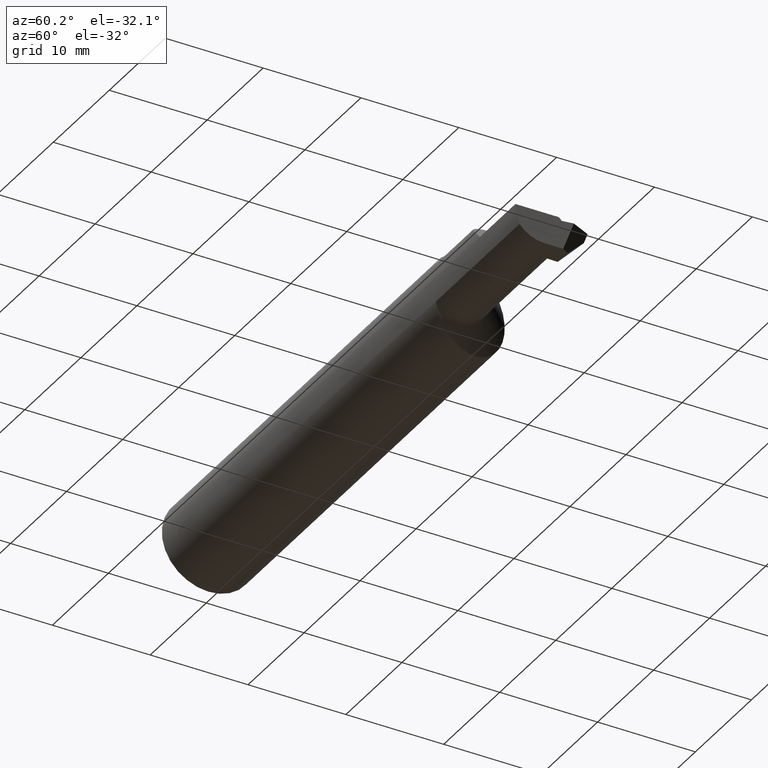
[diagram: clean part render]
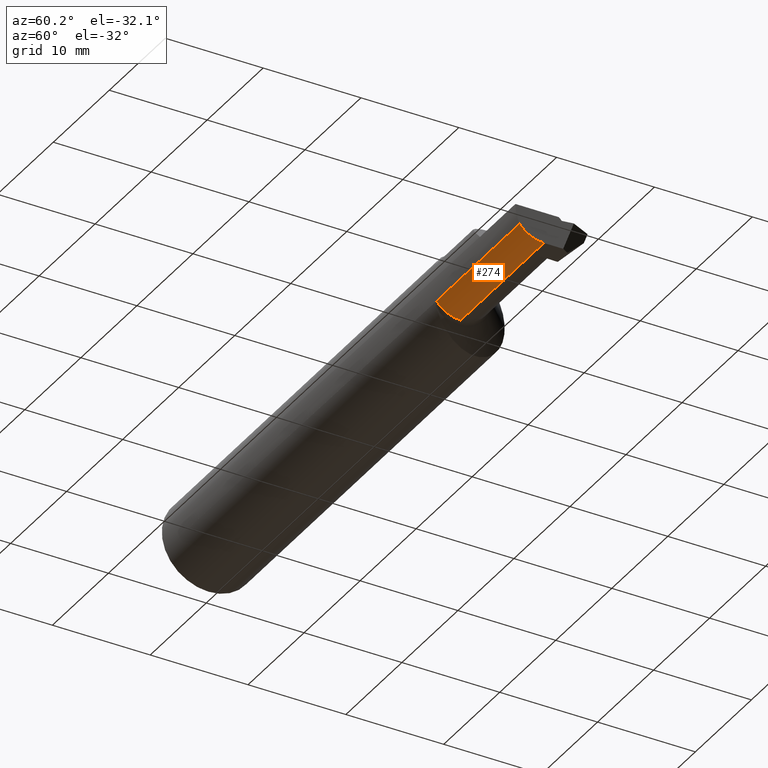
[diagram: same view with one face highlighted and labeled with its STEP entity id]
A machine part, auxiliary view. The second image highlights one B-rep face of the part: STEP entity #274.
In plain terms, the highlighted cylindrical surface (edge-blend (fillet) strip) has radius 3.175 mm, axis along (-1, -0, -0).
Its self-contained STEP definition (entity closure, byte-faithful):
#6 = DIRECTION ( 'NONE',  ( -1.000000000000000000, -0.000000000000000000, -0.000000000000000000 ) ) ;
#60 = VERTEX_POINT ( 'NONE', #254 ) ;
#62 = DIRECTION ( 'NONE',  ( 0.000000000000000000, 0.000000000000000000, 1.000000000000000000 ) ) ;
#68 = ORIENTED_EDGE ( 'NONE', *, *, #301, .T. ) ;
#71 = CIRCLE ( 'NONE', #890, 0.1250000000000000000 ) ;
#73 = EDGE_CURVE ( 'NONE', #966, #60, #916, .T. ) ;
#142 = CARTESIAN_POINT ( 'NONE',  ( 2.500000000000000000, -0.07234999999999983111, -0.1249999999999999861 ) ) ;
#150 = VERTEX_POINT ( 'NONE', #363 ) ;
#164 = VERTEX_POINT ( 'NONE', #451 ) ;
#169 = ORIENTED_EDGE ( 'NONE', *, *, #712, .F. ) ;
#171 = CIRCLE ( 'NONE', #538, 0.1250000000000000000 ) ;
#173 = CARTESIAN_POINT ( 'NONE',  ( 1.905000000000000027, -0.07234999999999980336, 0.000000000000000000 ) ) ;
#176 = ORIENTED_EDGE ( 'NONE', *, *, #748, .F. ) ;
#223 = VERTEX_POINT ( 'NONE', #608 ) ;
#242 = DIRECTION ( 'NONE',  ( -1.000000000000000000, -0.000000000000000000, -0.000000000000000000 ) ) ;
#251 = VECTOR ( 'NONE', #767, 39.37007874015748143 ) ;
#254 = CARTESIAN_POINT ( 'NONE',  ( 1.915355339059327644, -0.07234999999999978948, -0.1250000000000000000 ) ) ;
#262 = EDGE_CURVE ( 'NONE', #164, #60, #171, .T. ) ;
#274 = ADVANCED_FACE ( 'NONE', ( #631 ), #569, .T. ) ;
#301 = EDGE_CURVE ( 'NONE', #223, #164, #965, .T. ) ;
#363 = CARTESIAN_POINT ( 'NONE',  ( 2.500000000000000000, -0.07234999999999983111, -0.1249999999999999861 ) ) ;
#379 = AXIS2_PLACEMENT_3D ( 'NONE', #173, #6, #62 ) ;
#390 = DIRECTION ( 'NONE',  ( 1.000000000000000000, -0.000000000000000000, -0.000000000000000000 ) ) ;
#451 = CARTESIAN_POINT ( 'NONE',  ( 1.915355339059327644, -0.1707639599170700795, -0.07706940050007714260 ) ) ;
#465 = VECTOR ( 'NONE', #242, 39.37007874015748143 ) ;
#538 = AXIS2_PLACEMENT_3D ( 'NONE', #539, #543, #877 ) ;
#539 = CARTESIAN_POINT ( 'NONE',  ( 1.915355339059327644, -0.07234999999999980336, 0.000000000000000000 ) ) ;
#543 = DIRECTION ( 'NONE',  ( 1.000000000000000000, 0.000000000000000000, 0.000000000000000000 ) ) ;
#569 = CYLINDRICAL_SURFACE ( 'NONE', #379, 0.1250000000000000000 ) ;
#580 = EDGE_LOOP ( 'NONE', ( #888, #169, #176, #68, #899 ) ) ;
#608 = CARTESIAN_POINT ( 'NONE',  ( 2.500000000000000000, -0.1707639599170699962, -0.07706940050007722587 ) ) ;
#631 = FACE_OUTER_BOUND ( 'NONE', #580, .T. ) ;
#649 = CARTESIAN_POINT ( 'NONE',  ( 2.153999999999999915, -0.1707639599170700795, -0.07706940050007714260 ) ) ;
#712 = EDGE_CURVE ( 'NONE', #150, #966, #891, .T. ) ;
#748 = EDGE_CURVE ( 'NONE', #223, #150, #71, .T. ) ;
#767 = DIRECTION ( 'NONE',  ( -1.000000000000000000, -0.000000000000000000, -0.000000000000000000 ) ) ;
#800 = DIRECTION ( 'NONE',  ( -1.000000000000000000, -0.000000000000000000, -0.000000000000000000 ) ) ;
#802 = CARTESIAN_POINT ( 'NONE',  ( 2.417803995548856388, -0.07234999999999983111, -0.1249999999999999861 ) ) ;
#811 = DIRECTION ( 'NONE',  ( 0.000000000000000000, 0.000000000000000000, 1.000000000000000000 ) ) ;
#877 = DIRECTION ( 'NONE',  ( 0.000000000000000000, 1.775701195881771191E-15, 1.000000000000000000 ) ) ;
#888 = ORIENTED_EDGE ( 'NONE', *, *, #73, .F. ) ;
#890 = AXIS2_PLACEMENT_3D ( 'NONE', #954, #390, #811 ) ;
#891 = LINE ( 'NONE', #142, #465 ) ;
#899 = ORIENTED_EDGE ( 'NONE', *, *, #262, .T. ) ;
#916 = LINE ( 'NONE', #1002, #251 ) ;
#954 = CARTESIAN_POINT ( 'NONE',  ( 2.500000000000000000, -0.07234999999999980336, 0.000000000000000000 ) ) ;
#965 = LINE ( 'NONE', #649, #990 ) ;
#966 = VERTEX_POINT ( 'NONE', #802 ) ;
#990 = VECTOR ( 'NONE', #800, 39.37007874015748143 ) ;
#1002 = CARTESIAN_POINT ( 'NONE',  ( 1.905000000000000027, -0.07234999999999978948, -0.1250000000000000000 ) ) ;